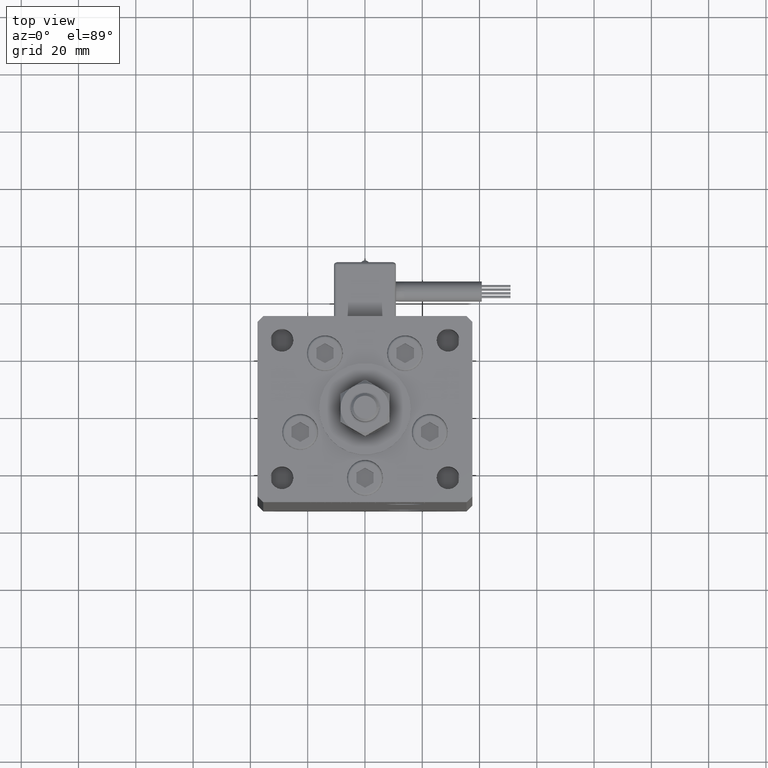
[diagram: clean part render]
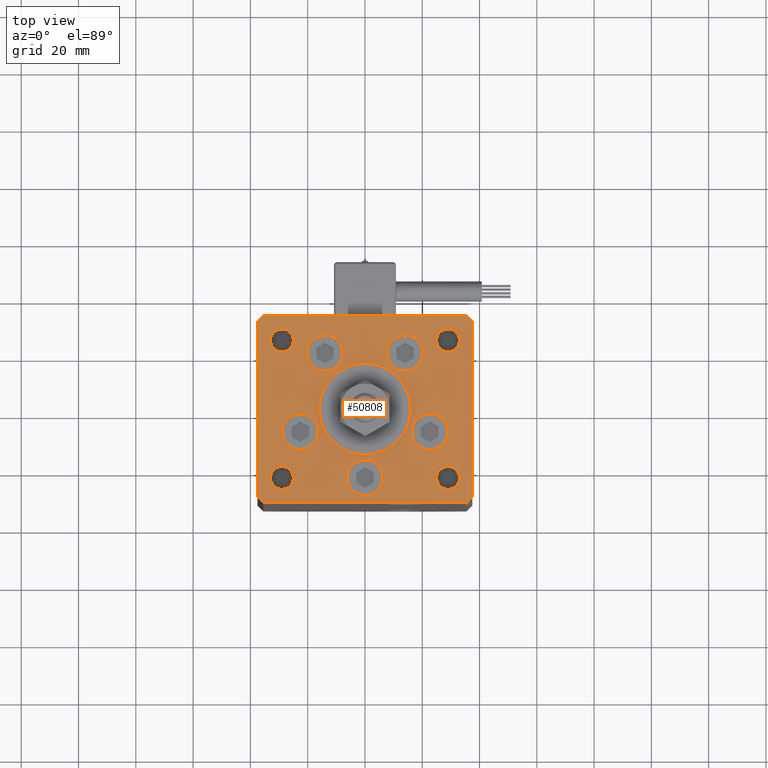
[diagram: same view with one face highlighted and labeled with its STEP entity id]
A machine part, top view. The second image highlights one B-rep face of the part: STEP entity #50808.
In plain terms, the highlighted planar face has unit normal (0, 0, 1).
Its self-contained STEP definition (entity closure, byte-faithful):
#30 = DIRECTION ( 'NONE',  ( 2.275047181608926165E-16, -1.000000000000000000, 0.000000000000000000 ) ) ;
#34 = ORIENTED_EDGE ( 'NONE', *, *, #33521, .F. ) ;
#611 = FACE_BOUND ( 'NONE', #10733, .T. ) ;
#696 = EDGE_CURVE ( 'NONE', #4356, #51417, #7215, .T. ) ;
#739 = CARTESIAN_POINT ( 'NONE',  ( -35.50000000000000711, 32.49999999999997868, 0.000000000000000000 ) ) ;
#755 = EDGE_LOOP ( 'NONE', ( #14875, #50622 ) ) ;
#1539 = LINE ( 'NONE', #36520, #42477 ) ;
#1816 = ORIENTED_EDGE ( 'NONE', *, *, #29072, .F. ) ;
#1909 = VERTEX_POINT ( 'NONE', #47743 ) ;
#2054 = EDGE_CURVE ( 'NONE', #3096, #16203, #26519, .T. ) ;
#2380 = ORIENTED_EDGE ( 'NONE', *, *, #24276, .F. ) ;
#2605 = DIRECTION ( 'NONE',  ( 1.000000000000000000, 0.000000000000000000, 0.000000000000000000 ) ) ;
#2734 = DIRECTION ( 'NONE',  ( 1.000000000000000000, 1.172770800660376149E-15, 0.000000000000000000 ) ) ;
#3096 = VERTEX_POINT ( 'NONE', #32253 ) ;
#3203 = CARTESIAN_POINT ( 'NONE',  ( 35.50000000000001421, -32.49999999999992184, 0.000000000000000000 ) ) ;
#3274 = CARTESIAN_POINT ( 'NONE',  ( 37.50000000000000711, -30.49999999999992895, 0.000000000000000000 ) ) ;
#3298 = ORIENTED_EDGE ( 'NONE', *, *, #18206, .F. ) ;
#3517 = ORIENTED_EDGE ( 'NONE', *, *, #48923, .T. ) ;
#3735 = ORIENTED_EDGE ( 'NONE', *, *, #54122, .T. ) ;
#4356 = VERTEX_POINT ( 'NONE', #22405 ) ;
#4565 = VERTEX_POINT ( 'NONE', #36348 ) ;
#4617 = CARTESIAN_POINT ( 'NONE',  ( -37.50000000000001421, 30.50000000000000000, 0.000000000000000000 ) ) ;
#4818 = CIRCLE ( 'NONE', #29713, 16.00000000000000355 ) ;
#4991 = CIRCLE ( 'NONE', #25147, 6.250000000000001776 ) ;
#5120 = CIRCLE ( 'NONE', #37181, 4.000000000000000000 ) ;
#5556 = ORIENTED_EDGE ( 'NONE', *, *, #2054, .F. ) ;
#5973 = AXIS2_PLACEMENT_3D ( 'NONE', #31435, #34884, #26293 ) ;
#6045 = DIRECTION ( 'NONE',  ( 0.000000000000000000, 0.000000000000000000, 1.000000000000000000 ) ) ;
#6104 = VERTEX_POINT ( 'NONE', #50326 ) ;
#6636 = CARTESIAN_POINT ( 'NONE',  ( 13.99106857963324124, 19.50000000000000000, 0.000000000000000000 ) ) ;
#7008 = LINE ( 'NONE', #3274, #31433 ) ;
#7035 = CARTESIAN_POINT ( 'NONE',  ( 24.99999999999999645, 24.00000000000000355, 0.000000000000000000 ) ) ;
#7081 = CARTESIAN_POINT ( 'NONE',  ( 7.741068579633241242, 19.50000000000000000, 0.000000000000000000 ) ) ;
#7215 = CIRCLE ( 'NONE', #44769, 6.250000000000000000 ) ;
#7310 = EDGE_LOOP ( 'NONE', ( #5556, #3298 ) ) ;
#7440 = DIRECTION ( 'NONE',  ( 0.000000000000000000, 0.000000000000000000, 1.000000000000000000 ) ) ;
#7737 = DIRECTION ( 'NONE',  ( 1.000000000000000000, 0.000000000000000000, 0.000000000000000000 ) ) ;
#7780 = CARTESIAN_POINT ( 'NONE',  ( -20.24106857963324302, 19.50000000000000000, 0.000000000000000000 ) ) ;
#8215 = ORIENTED_EDGE ( 'NONE', *, *, #42200, .T. ) ;
#8475 = DIRECTION ( 'NONE',  ( 0.000000000000000000, 0.000000000000000000, 1.000000000000000000 ) ) ;
#8485 = CIRCLE ( 'NONE', #37781, 6.250000000000000000 ) ;
#8616 = EDGE_CURVE ( 'NONE', #43390, #20165, #18412, .T. ) ;
#9050 = DIRECTION ( 'NONE',  ( 1.000000000000000000, 0.000000000000000000, 0.000000000000000000 ) ) ;
#9212 = CARTESIAN_POINT ( 'NONE',  ( 29.00000000000000355, -23.99999999999999645, 0.000000000000000000 ) ) ;
#9432 = CIRCLE ( 'NONE', #41479, 3.999999999999996447 ) ;
#9473 = CIRCLE ( 'NONE', #41522, 4.000000000000000000 ) ;
#9599 = VERTEX_POINT ( 'NONE', #35010 ) ;
#9622 = EDGE_CURVE ( 'NONE', #4565, #25750, #27254, .T. ) ;
#9846 = DIRECTION ( 'NONE',  ( 0.000000000000000000, 0.000000000000000000, 1.000000000000000000 ) ) ;
#9859 = ORIENTED_EDGE ( 'NONE', *, *, #43085, .F. ) ;
#9955 = CARTESIAN_POINT ( 'NONE',  ( -37.50000000000001421, 30.50000000000000000, 0.000000000000000000 ) ) ;
#10175 = CIRCLE ( 'NONE', #53246, 4.000000000000000000 ) ;
#10221 = AXIS2_PLACEMENT_3D ( 'NONE', #32721, #6045, #55065 ) ;
#10506 = DIRECTION ( 'NONE',  ( 0.000000000000000000, 0.000000000000000000, 1.000000000000000000 ) ) ;
#10733 = EDGE_LOOP ( 'NONE', ( #30506, #9859 ) ) ;
#11577 = ORIENTED_EDGE ( 'NONE', *, *, #50703, .F. ) ;
#11670 = VECTOR ( 'NONE', #30, 1000.000000000000000 ) ;
#11837 = CARTESIAN_POINT ( 'NONE',  ( 16.00000000000000355, -4.979459025271462852E-15, 0.000000000000000000 ) ) ;
#12118 = EDGE_LOOP ( 'NONE', ( #34512, #30022 ) ) ;
#12678 = DIRECTION ( 'NONE',  ( 0.000000000000000000, 0.000000000000000000, 1.000000000000000000 ) ) ;
#12685 = FACE_BOUND ( 'NONE', #31958, .T. ) ;
#12776 = CARTESIAN_POINT ( 'NONE',  ( 0.000000000000000000, -6.938893903907228378E-15, 0.000000000000000000 ) ) ;
#12806 = LINE ( 'NONE', #739, #30725 ) ;
#12985 = CARTESIAN_POINT ( 'NONE',  ( -29.00000000000000000, -23.99999999999999645, 0.000000000000000000 ) ) ;
#13025 = CARTESIAN_POINT ( 'NONE',  ( -29.00000000000000000, 24.00000000000000711, 0.000000000000000000 ) ) ;
#13284 = CARTESIAN_POINT ( 'NONE',  ( 37.50000000000000711, 30.50000000000001421, 0.000000000000000000 ) ) ;
#13427 = CARTESIAN_POINT ( 'NONE',  ( 35.50000000000000000, 32.49999999999999289, 0.000000000000000000 ) ) ;
#13520 = FACE_BOUND ( 'NONE', #34571, .T. ) ;
#13800 = FACE_BOUND ( 'NONE', #18192, .T. ) ;
#14324 = EDGE_CURVE ( 'NONE', #21994, #6104, #8485, .T. ) ;
#14450 = DIRECTION ( 'NONE',  ( 0.7071067811865463515, 0.7071067811865487940, 0.000000000000000000 ) ) ;
#14875 = ORIENTED_EDGE ( 'NONE', *, *, #43081, .F. ) ;
#15212 = CIRCLE ( 'NONE', #47277, 6.250000000000000000 ) ;
#15341 = DIRECTION ( 'NONE',  ( 1.000000000000000000, 0.000000000000000000, 0.000000000000000000 ) ) ;
#15365 = CARTESIAN_POINT ( 'NONE',  ( 0.000000000000000000, -24.00000000000001066, 0.000000000000000000 ) ) ;
#15737 = CIRCLE ( 'NONE', #10221, 6.250000000000000000 ) ;
#15865 = DIRECTION ( 'NONE',  ( -1.000000000000000000, 0.000000000000000000, 0.000000000000000000 ) ) ;
#15936 = VERTEX_POINT ( 'NONE', #31178 ) ;
#16169 = CARTESIAN_POINT ( 'NONE',  ( -28.87741699796953654, -8.000000000000000000, 0.000000000000000000 ) ) ;
#16203 = VERTEX_POINT ( 'NONE', #11837 ) ;
#16977 = CARTESIAN_POINT ( 'NONE',  ( 22.62741699796953299, -8.000000000000000000, 0.000000000000000000 ) ) ;
#16987 = DIRECTION ( 'NONE',  ( 1.000000000000000000, 0.000000000000000000, 0.000000000000000000 ) ) ;
#17003 = AXIS2_PLACEMENT_3D ( 'NONE', #16977, #12678, #30193 ) ;
#17006 = CARTESIAN_POINT ( 'NONE',  ( -22.62741699796953299, -8.000000000000000000, 0.000000000000000000 ) ) ;
#17379 = DIRECTION ( 'NONE',  ( 0.000000000000000000, 0.000000000000000000, 1.000000000000000000 ) ) ;
#17519 = CARTESIAN_POINT ( 'NONE',  ( -37.50000000000000000, -30.50000000000004263, 0.000000000000000000 ) ) ;
#17824 = FACE_BOUND ( 'NONE', #12118, .T. ) ;
#18192 = EDGE_LOOP ( 'NONE', ( #3517, #8215 ) ) ;
#18206 = EDGE_CURVE ( 'NONE', #16203, #3096, #4818, .T. ) ;
#18412 = LINE ( 'NONE', #13284, #25699 ) ;
#18490 = CARTESIAN_POINT ( 'NONE',  ( 0.000000000000000000, -24.00000000000001066, 0.000000000000000000 ) ) ;
#18498 = DIRECTION ( 'NONE',  ( 0.000000000000000000, 0.000000000000000000, 1.000000000000000000 ) ) ;
#18779 = DIRECTION ( 'NONE',  ( 0.000000000000000000, 0.000000000000000000, 1.000000000000000000 ) ) ;
#18826 = CARTESIAN_POINT ( 'NONE',  ( -32.99999999999999289, -23.99999999999999645, 0.000000000000000000 ) ) ;
#19038 = CIRCLE ( 'NONE', #31871, 3.999999999999996447 ) ;
#19454 = VERTEX_POINT ( 'NONE', #16169 ) ;
#19632 = DIRECTION ( 'NONE',  ( 0.000000000000000000, 1.000000000000000000, 0.000000000000000000 ) ) ;
#19839 = ORIENTED_EDGE ( 'NONE', *, *, #25546, .T. ) ;
#20165 = VERTEX_POINT ( 'NONE', #13427 ) ;
#20520 = AXIS2_PLACEMENT_3D ( 'NONE', #6636, #41909, #2605 ) ;
#20947 = ORIENTED_EDGE ( 'NONE', *, *, #25348, .F. ) ;
#21290 = VERTEX_POINT ( 'NONE', #7081 ) ;
#21994 = VERTEX_POINT ( 'NONE', #7780 ) ;
#22405 = CARTESIAN_POINT ( 'NONE',  ( -6.250000000000000000, -24.00000000000001066, 0.000000000000000000 ) ) ;
#22421 = FACE_BOUND ( 'NONE', #755, .T. ) ;
#22547 = EDGE_CURVE ( 'NONE', #19454, #53022, #4991, .T. ) ;
#22551 = DIRECTION ( 'NONE',  ( -0.7071067811865524577, -0.7071067811865426878, 0.000000000000000000 ) ) ;
#22590 = CARTESIAN_POINT ( 'NONE',  ( -33.00000000000000000, 24.00000000000000711, 0.000000000000000000 ) ) ;
#22822 = DIRECTION ( 'NONE',  ( 1.000000000000000000, 0.000000000000000000, 0.000000000000000000 ) ) ;
#24264 = CARTESIAN_POINT ( 'NONE',  ( 29.00000000000000000, 24.00000000000000355, 0.000000000000000000 ) ) ;
#24269 = EDGE_CURVE ( 'NONE', #1909, #56002, #12806, .T. ) ;
#24276 = EDGE_CURVE ( 'NONE', #42252, #32586, #35283, .T. ) ;
#24390 = CARTESIAN_POINT ( 'NONE',  ( -13.99106857963324124, 19.50000000000000000, 0.000000000000000000 ) ) ;
#24389 = AXIS2_PLACEMENT_3D ( 'NONE', #31729, #48369, #40317 ) ;
#24552 = CARTESIAN_POINT ( 'NONE',  ( -35.50000000000001421, -32.50000000000000711, 0.000000000000000000 ) ) ;
#24745 = CARTESIAN_POINT ( 'NONE',  ( -29.00000000000000000, -23.99999999999999645, 0.000000000000000000 ) ) ;
#25061 = DIRECTION ( 'NONE',  ( 1.000000000000000000, 0.000000000000000000, 0.000000000000000000 ) ) ;
#25147 = AXIS2_PLACEMENT_3D ( 'NONE', #46862, #56601, #34530 ) ;
#25334 = EDGE_LOOP ( 'NONE', ( #35532, #19839 ) ) ;
#25348 = EDGE_CURVE ( 'NONE', #32586, #42252, #54541, .T. ) ;
#25546 = EDGE_CURVE ( 'NONE', #9599, #39350, #10175, .T. ) ;
#25699 = VECTOR ( 'NONE', #26755, 1000.000000000000000 ) ;
#25750 = VERTEX_POINT ( 'NONE', #30396 ) ;
#26293 = DIRECTION ( 'NONE',  ( 1.000000000000000000, 0.000000000000000000, 0.000000000000000000 ) ) ;
#26419 = EDGE_CURVE ( 'NONE', #52423, #21290, #15737, .T. ) ;
#26515 = DIRECTION ( 'NONE',  ( -0.000000000000000000, -0.000000000000000000, -1.000000000000000000 ) ) ;
#26519 = CIRCLE ( 'NONE', #33843, 16.00000000000000355 ) ;
#26708 = DIRECTION ( 'NONE',  ( -0.000000000000000000, -0.000000000000000000, -1.000000000000000000 ) ) ;
#26755 = DIRECTION ( 'NONE',  ( -0.7071067811865524577, 0.7071067811865426878, 0.000000000000000000 ) ) ;
#26997 = CARTESIAN_POINT ( 'NONE',  ( 0.000000000000000000, 0.000000000000000000, 0.000000000000000000 ) ) ;
#27254 = LINE ( 'NONE', #17519, #41266 ) ;
#27350 = DIRECTION ( 'NONE',  ( 1.000000000000000000, 0.000000000000000000, 0.000000000000000000 ) ) ;
#27498 = ORIENTED_EDGE ( 'NONE', *, *, #36030, .T. ) ;
#28338 = CARTESIAN_POINT ( 'NONE',  ( 6.250000000000000000, -24.00000000000001066, 0.000000000000000000 ) ) ;
#28690 = ORIENTED_EDGE ( 'NONE', *, *, #50020, .T. ) ;
#28789 = CARTESIAN_POINT ( 'NONE',  ( 29.00000000000000355, -23.99999999999999645, 0.000000000000000000 ) ) ;
#28959 = CARTESIAN_POINT ( 'NONE',  ( 35.50000000000000000, 32.49999999999999289, 0.000000000000000000 ) ) ;
#29072 = EDGE_CURVE ( 'NONE', #53022, #19454, #38719, .T. ) ;
#29083 = EDGE_LOOP ( 'NONE', ( #47053, #37303 ) ) ;
#29137 = VERTEX_POINT ( 'NONE', #32459 ) ;
#29668 = VERTEX_POINT ( 'NONE', #18826 ) ;
#29713 = AXIS2_PLACEMENT_3D ( 'NONE', #12776, #8475, #51492 ) ;
#29941 = CIRCLE ( 'NONE', #46399, 6.250000000000000000 ) ;
#30022 = ORIENTED_EDGE ( 'NONE', *, *, #14324, .F. ) ;
#30193 = DIRECTION ( 'NONE',  ( 1.000000000000000000, 0.000000000000000000, 0.000000000000000000 ) ) ;
#30201 = DIRECTION ( 'NONE',  ( -0.000000000000000000, 0.000000000000000000, 1.000000000000000000 ) ) ;
#30223 = DIRECTION ( 'NONE',  ( 1.000000000000000000, 0.000000000000000000, 0.000000000000000000 ) ) ;
#30396 = CARTESIAN_POINT ( 'NONE',  ( -35.50000000000001421, -32.50000000000000711, 0.000000000000000000 ) ) ;
#30505 = EDGE_CURVE ( 'NONE', #48333, #43390, #7008, .T. ) ;
#30506 = ORIENTED_EDGE ( 'NONE', *, *, #35510, .F. ) ;
#30725 = VECTOR ( 'NONE', #22551, 1000.000000000000000 ) ;
#30730 = DIRECTION ( 'NONE',  ( 0.7071067811865512365, -0.7071067811865439090, 0.000000000000000000 ) ) ;
#31178 = CARTESIAN_POINT ( 'NONE',  ( 33.00000000000000000, 24.00000000000000355, 0.000000000000000000 ) ) ;
#31306 = PLANE ( 'NONE',  #51101 ) ;
#31433 = VECTOR ( 'NONE', #19632, 1000.000000000000000 ) ;
#31435 = CARTESIAN_POINT ( 'NONE',  ( 22.62741699796953299, -8.000000000000000000, 0.000000000000000000 ) ) ;
#31656 = CARTESIAN_POINT ( 'NONE',  ( 0.000000000000000000, -6.938893903907228378E-15, 0.000000000000000000 ) ) ;
#31729 = CARTESIAN_POINT ( 'NONE',  ( -29.00000000000000000, 24.00000000000000711, 0.000000000000000000 ) ) ;
#31871 = AXIS2_PLACEMENT_3D ( 'NONE', #24745, #37633, #16987 ) ;
#31958 = EDGE_LOOP ( 'NONE', ( #34, #11577 ) ) ;
#32253 = CARTESIAN_POINT ( 'NONE',  ( -16.00000000000000355, -6.938893903907228378E-15, 0.000000000000000000 ) ) ;
#32459 = CARTESIAN_POINT ( 'NONE',  ( -25.00000000000000000, 24.00000000000000711, 0.000000000000000000 ) ) ;
#32586 = VERTEX_POINT ( 'NONE', #33704 ) ;
#32721 = CARTESIAN_POINT ( 'NONE',  ( 13.99106857963324124, 19.50000000000000000, 0.000000000000000000 ) ) ;
#33221 = AXIS2_PLACEMENT_3D ( 'NONE', #17006, #51995, #30223 ) ;
#33247 = LINE ( 'NONE', #28959, #44798 ) ;
#33521 = EDGE_CURVE ( 'NONE', #48042, #29668, #9432, .T. ) ;
#33552 = CIRCLE ( 'NONE', #24389, 4.000000000000000000 ) ;
#33653 = DIRECTION ( 'NONE',  ( -0.000000000000000000, -0.000000000000000000, -1.000000000000000000 ) ) ;
#33704 = CARTESIAN_POINT ( 'NONE',  ( 28.87741699796953654, -8.000000000000000000, 0.000000000000000000 ) ) ;
#33843 = AXIS2_PLACEMENT_3D ( 'NONE', #31656, #9846, #27350 ) ;
#34512 = ORIENTED_EDGE ( 'NONE', *, *, #43444, .F. ) ;
#34530 = DIRECTION ( 'NONE',  ( 1.000000000000000000, 0.000000000000000000, 0.000000000000000000 ) ) ;
#34571 = EDGE_LOOP ( 'NONE', ( #20947, #2380 ) ) ;
#34884 = DIRECTION ( 'NONE',  ( 0.000000000000000000, 0.000000000000000000, 1.000000000000000000 ) ) ;
#35010 = CARTESIAN_POINT ( 'NONE',  ( 25.00000000000000355, -23.99999999999999645, 0.000000000000000000 ) ) ;
#35283 = CIRCLE ( 'NONE', #5973, 6.250000000000001776 ) ;
#35404 = EDGE_LOOP ( 'NONE', ( #40497, #38760, #27498, #54948, #55570, #3735, #47264, #28690 ) ) ;
#35510 = EDGE_CURVE ( 'NONE', #15936, #43166, #9473, .T. ) ;
#35532 = ORIENTED_EDGE ( 'NONE', *, *, #54466, .T. ) ;
#35590 = FACE_OUTER_BOUND ( 'NONE', #35404, .T. ) ;
#36030 = EDGE_CURVE ( 'NONE', #43391, #48333, #1539, .T. ) ;
#36348 = CARTESIAN_POINT ( 'NONE',  ( -37.50000000000000000, -30.50000000000004263, 0.000000000000000000 ) ) ;
#36520 = CARTESIAN_POINT ( 'NONE',  ( 35.50000000000001421, -32.49999999999992184, 0.000000000000000000 ) ) ;
#36556 = AXIS2_PLACEMENT_3D ( 'NONE', #28789, #33653, #15865 ) ;
#36715 = DIRECTION ( 'NONE',  ( 1.000000000000000000, 0.000000000000000000, 0.000000000000000000 ) ) ;
#37114 = ORIENTED_EDGE ( 'NONE', *, *, #22547, .F. ) ;
#37181 = AXIS2_PLACEMENT_3D ( 'NONE', #24264, #10506, #54097 ) ;
#37303 = ORIENTED_EDGE ( 'NONE', *, *, #37793, .F. ) ;
#37536 = VERTEX_POINT ( 'NONE', #22590 ) ;
#37633 = DIRECTION ( 'NONE',  ( 0.000000000000000000, 0.000000000000000000, 1.000000000000000000 ) ) ;
#37781 = AXIS2_PLACEMENT_3D ( 'NONE', #24390, #7440, #7737 ) ;
#37793 = EDGE_CURVE ( 'NONE', #21290, #52423, #46198, .T. ) ;
#38212 = AXIS2_PLACEMENT_3D ( 'NONE', #13025, #26515, #39406 ) ;
#38411 = CIRCLE ( 'NONE', #36556, 4.000000000000000000 ) ;
#38719 = CIRCLE ( 'NONE', #33221, 6.250000000000001776 ) ;
#38760 = ORIENTED_EDGE ( 'NONE', *, *, #39935, .T. ) ;
#39350 = VERTEX_POINT ( 'NONE', #43732 ) ;
#39406 = DIRECTION ( 'NONE',  ( -1.000000000000000000, 0.000000000000000000, 0.000000000000000000 ) ) ;
#39648 = CARTESIAN_POINT ( 'NONE',  ( -16.37741699796953299, -8.000000000000000000, 0.000000000000000000 ) ) ;
#39897 = FACE_BOUND ( 'NONE', #53471, .T. ) ;
#39935 = EDGE_CURVE ( 'NONE', #25750, #43391, #46336, .T. ) ;
#40317 = DIRECTION ( 'NONE',  ( -1.000000000000000000, 0.000000000000000000, 0.000000000000000000 ) ) ;
#40497 = ORIENTED_EDGE ( 'NONE', *, *, #9622, .T. ) ;
#40701 = CARTESIAN_POINT ( 'NONE',  ( 20.24106857963324302, 19.50000000000000000, 0.000000000000000000 ) ) ;
#41153 = CARTESIAN_POINT ( 'NONE',  ( -13.99106857963324124, 19.50000000000000000, 0.000000000000000000 ) ) ;
#41266 = VECTOR ( 'NONE', #30730, 1000.000000000000000 ) ;
#41479 = AXIS2_PLACEMENT_3D ( 'NONE', #12985, #43109, #25061 ) ;
#41522 = AXIS2_PLACEMENT_3D ( 'NONE', #53198, #17379, #9050 ) ;
#41909 = DIRECTION ( 'NONE',  ( 0.000000000000000000, 0.000000000000000000, 1.000000000000000000 ) ) ;
#42200 = EDGE_CURVE ( 'NONE', #37536, #29137, #33552, .T. ) ;
#42252 = VERTEX_POINT ( 'NONE', #48090 ) ;
#42477 = VECTOR ( 'NONE', #14450, 1000.000000000000000 ) ;
#42496 = CARTESIAN_POINT ( 'NONE',  ( 37.50000000000000711, 30.50000000000001421, 0.000000000000000000 ) ) ;
#42572 = CARTESIAN_POINT ( 'NONE',  ( -25.00000000000000355, -23.99999999999999645, 0.000000000000000000 ) ) ;
#43081 = EDGE_CURVE ( 'NONE', #51417, #4356, #15212, .T. ) ;
#43085 = EDGE_CURVE ( 'NONE', #43166, #15936, #5120, .T. ) ;
#43109 = DIRECTION ( 'NONE',  ( 0.000000000000000000, 0.000000000000000000, 1.000000000000000000 ) ) ;
#43166 = VERTEX_POINT ( 'NONE', #7035 ) ;
#43356 = LINE ( 'NONE', #4617, #11670 ) ;
#43390 = VERTEX_POINT ( 'NONE', #42496 ) ;
#43391 = VERTEX_POINT ( 'NONE', #3203 ) ;
#43444 = EDGE_CURVE ( 'NONE', #6104, #21994, #29941, .T. ) ;
#43732 = CARTESIAN_POINT ( 'NONE',  ( 33.00000000000000000, -23.99999999999999645, 0.000000000000000000 ) ) ;
#43924 = FACE_BOUND ( 'NONE', #7310, .T. ) ;
#44188 = DIRECTION ( 'NONE',  ( -1.000000000000000000, 0.000000000000000000, 0.000000000000000000 ) ) ;
#44769 = AXIS2_PLACEMENT_3D ( 'NONE', #18490, #18779, #22822 ) ;
#44798 = VECTOR ( 'NONE', #46444, 1000.000000000000000 ) ;
#46198 = CIRCLE ( 'NONE', #20520, 6.250000000000000000 ) ;
#46336 = LINE ( 'NONE', #24552, #48125 ) ;
#46399 = AXIS2_PLACEMENT_3D ( 'NONE', #41153, #18498, #15341 ) ;
#46444 = DIRECTION ( 'NONE',  ( -1.000000000000000000, -1.954618001100627573E-16, 0.000000000000000000 ) ) ;
#46619 = DIRECTION ( 'NONE',  ( 0.000000000000000000, 0.000000000000000000, 1.000000000000000000 ) ) ;
#46862 = CARTESIAN_POINT ( 'NONE',  ( -22.62741699796953299, -8.000000000000000000, 0.000000000000000000 ) ) ;
#47053 = ORIENTED_EDGE ( 'NONE', *, *, #26419, .F. ) ;
#47264 = ORIENTED_EDGE ( 'NONE', *, *, #24269, .T. ) ;
#47277 = AXIS2_PLACEMENT_3D ( 'NONE', #15365, #46619, #50910 ) ;
#47743 = CARTESIAN_POINT ( 'NONE',  ( -35.50000000000000711, 32.49999999999997868, 0.000000000000000000 ) ) ;
#48042 = VERTEX_POINT ( 'NONE', #42572 ) ;
#48090 = CARTESIAN_POINT ( 'NONE',  ( 16.37741699796953299, -8.000000000000000000, 0.000000000000000000 ) ) ;
#48125 = VECTOR ( 'NONE', #2734, 1000.000000000000000 ) ;
#48333 = VERTEX_POINT ( 'NONE', #55621 ) ;
#48369 = DIRECTION ( 'NONE',  ( -0.000000000000000000, -0.000000000000000000, -1.000000000000000000 ) ) ;
#48923 = EDGE_CURVE ( 'NONE', #29137, #37536, #51975, .T. ) ;
#50020 = EDGE_CURVE ( 'NONE', #56002, #4565, #43356, .T. ) ;
#50326 = CARTESIAN_POINT ( 'NONE',  ( -7.741068579633241242, 19.50000000000000000, 0.000000000000000000 ) ) ;
#50622 = ORIENTED_EDGE ( 'NONE', *, *, #696, .F. ) ;
#50703 = EDGE_CURVE ( 'NONE', #29668, #48042, #19038, .T. ) ;
#50808 = ADVANCED_FACE ( 'NONE', ( #43924, #17824, #52808, #13520, #22421, #39897, #13800, #611, #12685, #35590, #53091 ), #31306, .T. ) ;
#50910 = DIRECTION ( 'NONE',  ( 1.000000000000000000, 0.000000000000000000, 0.000000000000000000 ) ) ;
#51101 = AXIS2_PLACEMENT_3D ( 'NONE', #26997, #30201, #36715 ) ;
#51417 = VERTEX_POINT ( 'NONE', #28338 ) ;
#51492 = DIRECTION ( 'NONE',  ( 1.000000000000000000, 0.000000000000000000, 0.000000000000000000 ) ) ;
#51975 = CIRCLE ( 'NONE', #38212, 4.000000000000000000 ) ;
#51995 = DIRECTION ( 'NONE',  ( 0.000000000000000000, 0.000000000000000000, 1.000000000000000000 ) ) ;
#52423 = VERTEX_POINT ( 'NONE', #40701 ) ;
#52808 = FACE_BOUND ( 'NONE', #29083, .T. ) ;
#53022 = VERTEX_POINT ( 'NONE', #39648 ) ;
#53091 = FACE_BOUND ( 'NONE', #25334, .T. ) ;
#53198 = CARTESIAN_POINT ( 'NONE',  ( 29.00000000000000000, 24.00000000000000355, 0.000000000000000000 ) ) ;
#53246 = AXIS2_PLACEMENT_3D ( 'NONE', #9212, #26708, #44188 ) ;
#53471 = EDGE_LOOP ( 'NONE', ( #1816, #37114 ) ) ;
#54097 = DIRECTION ( 'NONE',  ( 1.000000000000000000, 0.000000000000000000, 0.000000000000000000 ) ) ;
#54122 = EDGE_CURVE ( 'NONE', #20165, #1909, #33247, .T. ) ;
#54466 = EDGE_CURVE ( 'NONE', #39350, #9599, #38411, .T. ) ;
#54541 = CIRCLE ( 'NONE', #17003, 6.250000000000001776 ) ;
#54948 = ORIENTED_EDGE ( 'NONE', *, *, #30505, .T. ) ;
#55065 = DIRECTION ( 'NONE',  ( 1.000000000000000000, 0.000000000000000000, 0.000000000000000000 ) ) ;
#55570 = ORIENTED_EDGE ( 'NONE', *, *, #8616, .T. ) ;
#55621 = CARTESIAN_POINT ( 'NONE',  ( 37.50000000000000711, -30.49999999999992895, 0.000000000000000000 ) ) ;
#56002 = VERTEX_POINT ( 'NONE', #9955 ) ;
#56601 = DIRECTION ( 'NONE',  ( 0.000000000000000000, 0.000000000000000000, 1.000000000000000000 ) ) ;